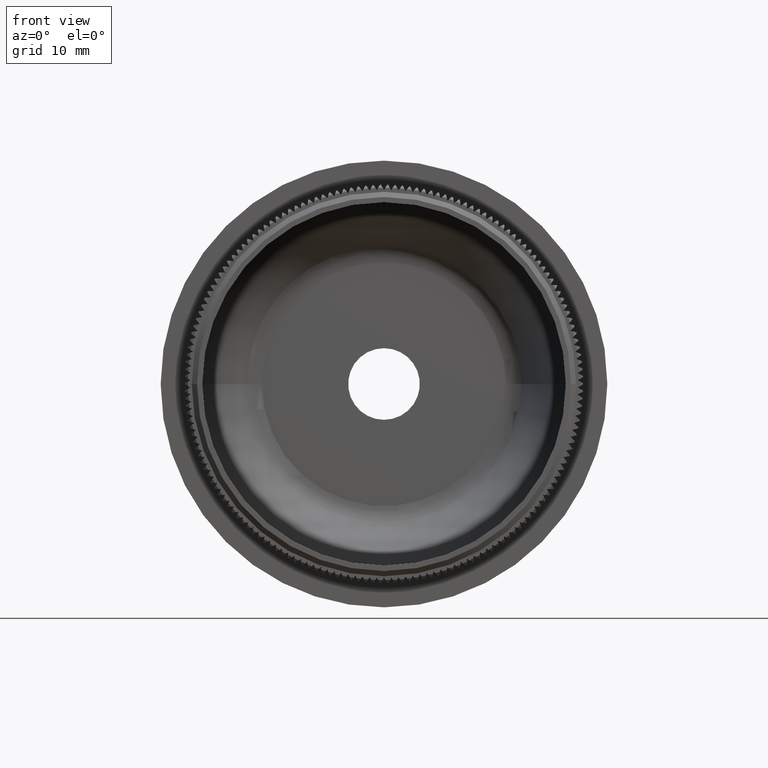
[diagram: clean part render]
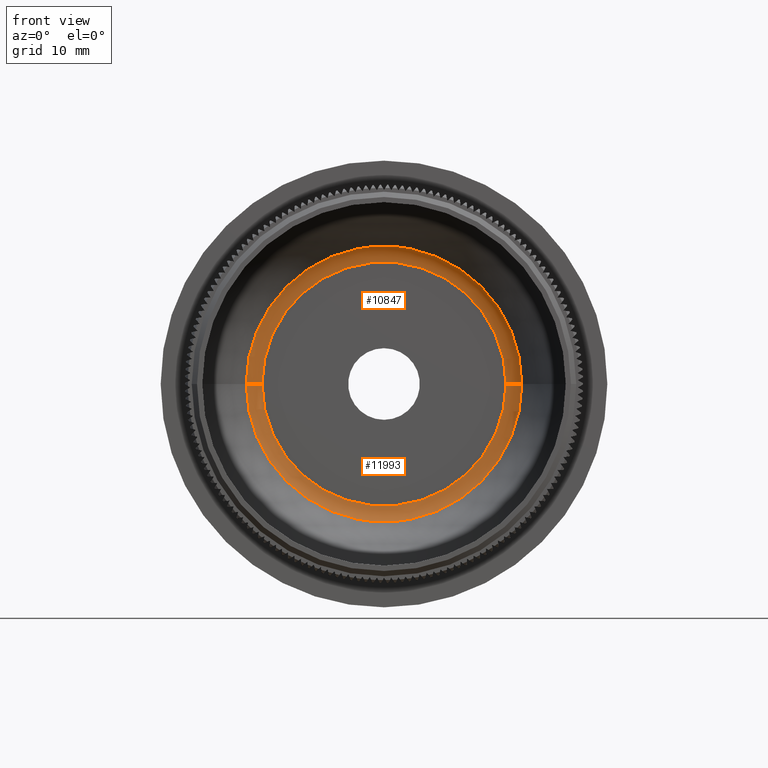
[diagram: same view with one multi-face feature highlighted, each face labeled with its STEP entity id]
A machine part, front view. The highlighted faces form ONE feature: a constant-radius fillet chain: 2 tangent blend faces with common blend radius 2 mm. The faces share edges in the B-rep.
Their STEP definitions:
[1] entity #11993 (Torus):
#1735 = AXIS2_PLACEMENT_3D ( 'NONE', #12772, #21665, #21790 ) ;
#2846 = CIRCLE ( 'NONE', #15349, 2.000000000000000000 ) ;
#2952 = AXIS2_PLACEMENT_3D ( 'NONE', #18583, #27366, #15729 ) ;
#3411 = EDGE_CURVE ( 'NONE', #35656, #15644, #2846, .T. ) ;
#3765 = DIRECTION ( 'NONE',  ( 0.0000000000000000000, 0.0000000000000000000, -1.000000000000000000 ) ) ;
#4587 = AXIS2_PLACEMENT_3D ( 'NONE', #36384, #3765, #24415 ) ;
#6072 = EDGE_LOOP ( 'NONE', ( #35060, #20497, #35952, #10595 ) ) ;
#8089 = DIRECTION ( 'NONE',  ( 1.224646799147353200E-016, 1.499340290348078700E-032, 1.000000000000000000 ) ) ;
#10530 = CIRCLE ( 'NONE', #4587, 2.000000000000000000 ) ;
#10595 = ORIENTED_EDGE ( 'NONE', *, *, #17888, .F. ) ;
#11171 = EDGE_CURVE ( 'NONE', #15088, #15644, #27937, .T. ) ;
#11801 = CARTESIAN_POINT ( 'NONE',  ( -11.58274578845617100, 27.00000000000003900, 1.509991917163293400E-015 ) ) ;
#11993 = ADVANCED_FACE ( 'NONE', ( #19573 ), #20951, .F. ) ;
#12772 = CARTESIAN_POINT ( 'NONE',  ( -3.306125031690794000E-015, 27.00000000000003900, 0.0000000000000000000 ) ) ;
#14753 = VERTEX_POINT ( 'NONE', #36315 ) ;
#15088 = VERTEX_POINT ( 'NONE', #30110 ) ;
#15349 = AXIS2_PLACEMENT_3D ( 'NONE', #15938, #8089, #36966 ) ;
#15644 = VERTEX_POINT ( 'NONE', #35985 ) ;
#15729 = DIRECTION ( 'NONE',  ( 1.000000000000000000, 0.0000000000000000000, 0.0000000000000000000 ) ) ;
#15809 = AXIS2_PLACEMENT_3D ( 'NONE', #27254, #21447, #35759 ) ;
#15938 = CARTESIAN_POINT ( 'NONE',  ( -11.58274578845617100, 25.00000000000003600, 1.418477255517033100E-015 ) ) ;
#17888 = EDGE_CURVE ( 'NONE', #14753, #15088, #10530, .T. ) ;
#18583 = CARTESIAN_POINT ( 'NONE',  ( -3.223978165369161200E-015, 26.32903225806455800, 0.0000000000000000000 ) ) ;
#19573 = FACE_OUTER_BOUND ( 'NONE', #6072, .T. ) ;
#20497 = ORIENTED_EDGE ( 'NONE', *, *, #3411, .T. ) ;
#20951 = TOROIDAL_SURFACE ( 'NONE', #15809, 11.58274578845616700, 2.000000000000000000 ) ;
#21447 = DIRECTION ( 'NONE',  ( 1.224304257678195700E-016, -1.000000000000000000, 0.0000000000000000000 ) ) ;
#21665 = DIRECTION ( 'NONE',  ( 1.224304257678195700E-016, -1.000000000000000000, 0.0000000000000000000 ) ) ;
#21790 = DIRECTION ( 'NONE',  ( 1.000000000000000000, 0.0000000000000000000, 0.0000000000000000000 ) ) ;
#23528 = CIRCLE ( 'NONE', #1735, 11.58274578845616700 ) ;
#23852 = EDGE_CURVE ( 'NONE', #35656, #14753, #23528, .T. ) ;
#24415 = DIRECTION ( 'NONE',  ( -1.000000000000000000, 0.0000000000000000000, 0.0000000000000000000 ) ) ;
#27254 = CARTESIAN_POINT ( 'NONE',  ( -3.061264180155155100E-015, 25.00000000000003600, 0.0000000000000000000 ) ) ;
#27366 = DIRECTION ( 'NONE',  ( -1.224304257678195700E-016, 1.000000000000000000, -0.0000000000000000000 ) ) ;
#27937 = CIRCLE ( 'NONE', #2952, 13.07729363212793100 ) ;
#30110 = CARTESIAN_POINT ( 'NONE',  ( 13.07729363212792800, 26.32903225806455800, -1.857011153669367900E-015 ) ) ;
#35060 = ORIENTED_EDGE ( 'NONE', *, *, #23852, .F. ) ;
#35656 = VERTEX_POINT ( 'NONE', #11801 ) ;
#35759 = DIRECTION ( 'NONE',  ( 1.000000000000000000, 1.224304257678195700E-016, 0.0000000000000000000 ) ) ;
#35952 = ORIENTED_EDGE ( 'NONE', *, *, #11171, .F. ) ;
#35985 = CARTESIAN_POINT ( 'NONE',  ( -13.07729363212793500, 26.32903225806455800, 0.0000000000000000000 ) ) ;
#36315 = CARTESIAN_POINT ( 'NONE',  ( 11.58274578845616400, 27.00000000000003900, 0.0000000000000000000 ) ) ;
#36384 = CARTESIAN_POINT ( 'NONE',  ( 11.58274578845616400, 25.00000000000003600, 0.0000000000000000000 ) ) ;
#36966 = DIRECTION ( 'NONE',  ( 1.000000000000000000, 0.0000000000000000000, -1.224646799147353500E-016 ) ) ;
[2] entity #10847 (Torus):
#332 = CIRCLE ( 'NONE', #10238, 11.58274578845616700 ) ;
#1623 = DIRECTION ( 'NONE',  ( 1.000000000000000000, 0.0000000000000000000, 0.0000000000000000000 ) ) ;
#2846 = CIRCLE ( 'NONE', #15349, 2.000000000000000000 ) ;
#3411 = EDGE_CURVE ( 'NONE', #35656, #15644, #2846, .T. ) ;
#3765 = DIRECTION ( 'NONE',  ( 0.0000000000000000000, 0.0000000000000000000, -1.000000000000000000 ) ) ;
#4587 = AXIS2_PLACEMENT_3D ( 'NONE', #36384, #3765, #24415 ) ;
#5331 = DIRECTION ( 'NONE',  ( 1.000000000000000000, 1.224304257678195700E-016, 0.0000000000000000000 ) ) ;
#6252 = FACE_OUTER_BOUND ( 'NONE', #13753, .T. ) ;
#7156 = TOROIDAL_SURFACE ( 'NONE', #23994, 11.58274578845616700, 2.000000000000000000 ) ;
#8089 = DIRECTION ( 'NONE',  ( 1.224646799147353200E-016, 1.499340290348078700E-032, 1.000000000000000000 ) ) ;
#9395 = ORIENTED_EDGE ( 'NONE', *, *, #17888, .T. ) ;
#10238 = AXIS2_PLACEMENT_3D ( 'NONE', #17834, #11789, #38197 ) ;
#10530 = CIRCLE ( 'NONE', #4587, 2.000000000000000000 ) ;
#10663 = DIRECTION ( 'NONE',  ( -1.224304257678195700E-016, 1.000000000000000000, -0.0000000000000000000 ) ) ;
#10847 = ADVANCED_FACE ( 'NONE', ( #6252 ), #7156, .F. ) ;
#11789 = DIRECTION ( 'NONE',  ( 1.224304257678195700E-016, -1.000000000000000000, 0.0000000000000000000 ) ) ;
#11801 = CARTESIAN_POINT ( 'NONE',  ( -11.58274578845617100, 27.00000000000003900, 1.509991917163293400E-015 ) ) ;
#13753 = EDGE_LOOP ( 'NONE', ( #38216, #22563, #9395, #36642 ) ) ;
#14753 = VERTEX_POINT ( 'NONE', #36315 ) ;
#15088 = VERTEX_POINT ( 'NONE', #30110 ) ;
#15349 = AXIS2_PLACEMENT_3D ( 'NONE', #15938, #8089, #36966 ) ;
#15644 = VERTEX_POINT ( 'NONE', #35985 ) ;
#15938 = CARTESIAN_POINT ( 'NONE',  ( -11.58274578845617100, 25.00000000000003600, 1.418477255517033100E-015 ) ) ;
#16802 = DIRECTION ( 'NONE',  ( 1.224304257678195700E-016, -1.000000000000000000, 0.0000000000000000000 ) ) ;
#17834 = CARTESIAN_POINT ( 'NONE',  ( -3.306125031690794000E-015, 27.00000000000003900, 0.0000000000000000000 ) ) ;
#17888 = EDGE_CURVE ( 'NONE', #14753, #15088, #10530, .T. ) ;
#20891 = EDGE_CURVE ( 'NONE', #15644, #15088, #33796, .T. ) ;
#22563 = ORIENTED_EDGE ( 'NONE', *, *, #26028, .F. ) ;
#23994 = AXIS2_PLACEMENT_3D ( 'NONE', #37572, #16802, #5331 ) ;
#24415 = DIRECTION ( 'NONE',  ( -1.000000000000000000, 0.0000000000000000000, 0.0000000000000000000 ) ) ;
#25494 = CARTESIAN_POINT ( 'NONE',  ( -3.223978165369161200E-015, 26.32903225806455800, 0.0000000000000000000 ) ) ;
#26028 = EDGE_CURVE ( 'NONE', #14753, #35656, #332, .T. ) ;
#28148 = AXIS2_PLACEMENT_3D ( 'NONE', #25494, #10663, #1623 ) ;
#30110 = CARTESIAN_POINT ( 'NONE',  ( 13.07729363212792800, 26.32903225806455800, -1.857011153669367900E-015 ) ) ;
#33796 = CIRCLE ( 'NONE', #28148, 13.07729363212793100 ) ;
#35656 = VERTEX_POINT ( 'NONE', #11801 ) ;
#35985 = CARTESIAN_POINT ( 'NONE',  ( -13.07729363212793500, 26.32903225806455800, 0.0000000000000000000 ) ) ;
#36315 = CARTESIAN_POINT ( 'NONE',  ( 11.58274578845616400, 27.00000000000003900, 0.0000000000000000000 ) ) ;
#36384 = CARTESIAN_POINT ( 'NONE',  ( 11.58274578845616400, 25.00000000000003600, 0.0000000000000000000 ) ) ;
#36642 = ORIENTED_EDGE ( 'NONE', *, *, #20891, .F. ) ;
#36966 = DIRECTION ( 'NONE',  ( 1.000000000000000000, 0.0000000000000000000, -1.224646799147353500E-016 ) ) ;
#37572 = CARTESIAN_POINT ( 'NONE',  ( -3.061264180155155100E-015, 25.00000000000003600, 0.0000000000000000000 ) ) ;
#38197 = DIRECTION ( 'NONE',  ( 1.000000000000000000, 0.0000000000000000000, 0.0000000000000000000 ) ) ;
#38216 = ORIENTED_EDGE ( 'NONE', *, *, #3411, .F. ) ;